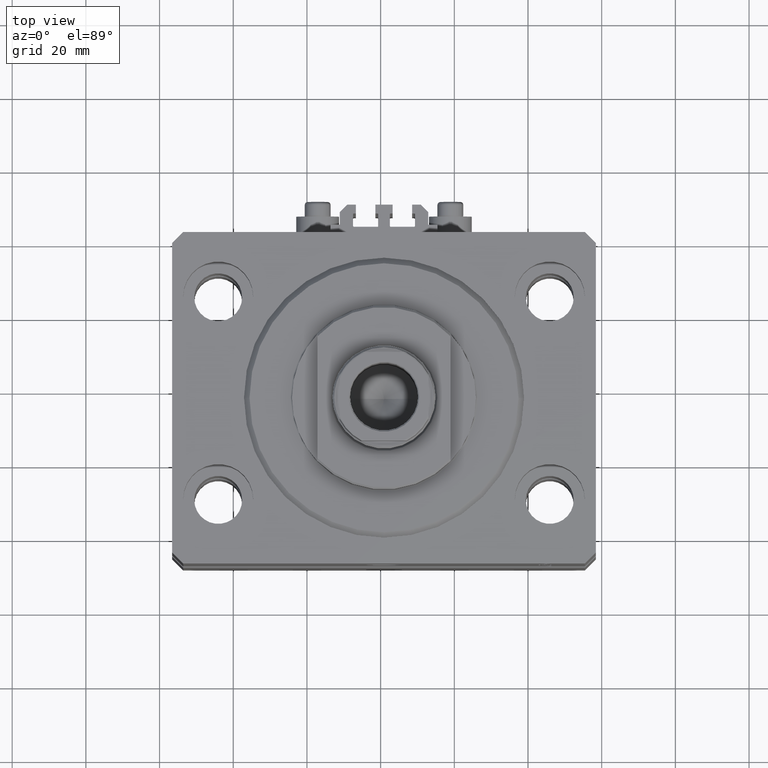
[diagram: clean part render]
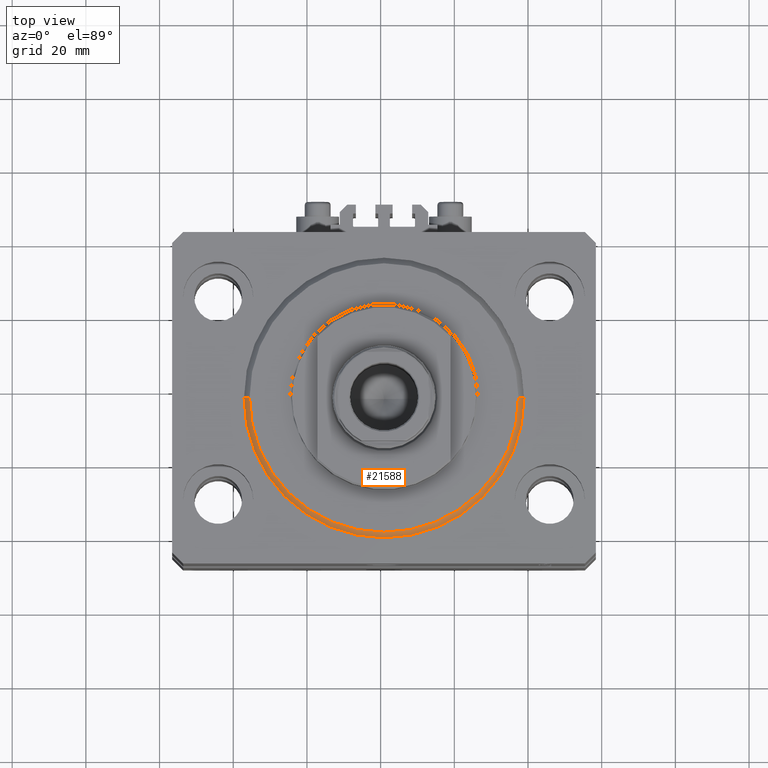
[diagram: same view with one face highlighted and labeled with its STEP entity id]
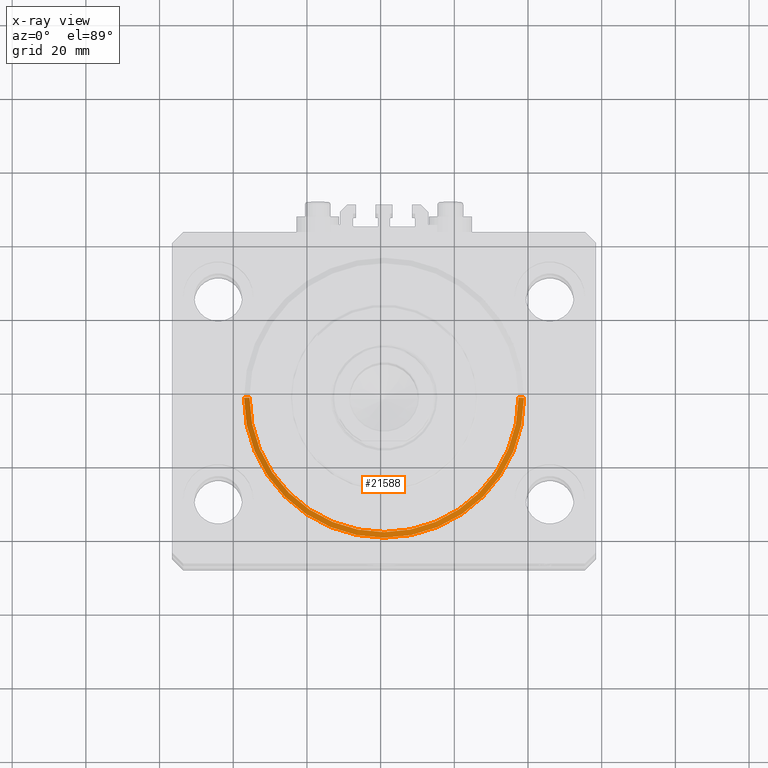
[diagram: x-ray of the same camera — body ghosted, the highlighted face saturated]
A machine part, top view. The second image highlights one B-rep face of the part: STEP entity #21588.
The next image is the same camera in x-ray: the body ghosted, the highlighted face saturated — about 0% of this face is hidden behind the body in this view.
In plain terms, the highlighted conical surface has half-angle 45 deg.
Its self-contained STEP definition (entity closure, byte-faithful):
#3385 = ORIENTED_EDGE ( 'NONE', *, *, #16274, .F. ) ;
#5655 = ORIENTED_EDGE ( 'NONE', *, *, #40999, .T. ) ;
#5938 = DIRECTION ( 'NONE',  ( -0.7071067811865491270, 8.659560562354953812E-17, 0.7071067811865459074 ) ) ;
#5985 = CARTESIAN_POINT ( 'NONE',  ( 38.00000000000000000, 4.653657836759941941E-15, 1.499999999999994449 ) ) ;
#8025 = AXIS2_PLACEMENT_3D ( 'NONE', #11445, #30858, #26889 ) ;
#11445 = CARTESIAN_POINT ( 'NONE',  ( 0.000000000000000000, 0.000000000000000000, 0.000000000000000000 ) ) ;
#13876 = CARTESIAN_POINT ( 'NONE',  ( -36.50000000000000000, 4.561809326823889791E-15, 0.000000000000000000 ) ) ;
#16274 = EDGE_CURVE ( 'NONE', #45695, #38200, #37918, .T. ) ;
#16666 = CARTESIAN_POINT ( 'NONE',  ( -38.00000000000000000, 4.653657836759941941E-15, 1.499999999999994449 ) ) ;
#16931 = VERTEX_POINT ( 'NONE', #13876 ) ;
#19073 = CARTESIAN_POINT ( 'NONE',  ( -38.00000000000000000, 0.000000000000000000, 1.499999999999994449 ) ) ;
#21588 = ADVANCED_FACE ( 'NONE', ( #48311 ), #46987, .T. ) ;
#22673 = EDGE_CURVE ( 'NONE', #31328, #16931, #23143, .T. ) ;
#22788 = EDGE_CURVE ( 'NONE', #16931, #45695, #24873, .T. ) ;
#23143 = CIRCLE ( 'NONE', #8025, 36.50000000000000000 ) ;
#24873 = LINE ( 'NONE', #16666, #41395 ) ;
#25327 = ORIENTED_EDGE ( 'NONE', *, *, #22788, .F. ) ;
#26889 = DIRECTION ( 'NONE',  ( 1.000000000000000000, 0.000000000000000000, 0.000000000000000000 ) ) ;
#27622 = AXIS2_PLACEMENT_3D ( 'NONE', #34154, #46558, #31160 ) ;
#29685 = DIRECTION ( 'NONE',  ( -0.000000000000000000, -0.000000000000000000, 1.000000000000000000 ) ) ;
#30375 = EDGE_LOOP ( 'NONE', ( #25327, #39984, #5655, #3385 ) ) ;
#30858 = DIRECTION ( 'NONE',  ( -0.000000000000000000, -0.000000000000000000, -1.000000000000000000 ) ) ;
#31160 = DIRECTION ( 'NONE',  ( 1.000000000000000000, 0.000000000000000000, 0.000000000000000000 ) ) ;
#31328 = VERTEX_POINT ( 'NONE', #39369 ) ;
#32019 = VECTOR ( 'NONE', #45007, 1000.000000000000114 ) ;
#32913 = DIRECTION ( 'NONE',  ( 1.000000000000000000, 0.000000000000000000, 0.000000000000000000 ) ) ;
#34154 = CARTESIAN_POINT ( 'NONE',  ( 0.000000000000000000, 0.000000000000000000, 1.499999999999994449 ) ) ;
#36812 = CARTESIAN_POINT ( 'NONE',  ( 38.00000000000000000, 0.000000000000000000, 1.499999999999994449 ) ) ;
#37805 = LINE ( 'NONE', #36812, #32019 ) ;
#37918 = CIRCLE ( 'NONE', #27622, 38.00000000000000000 ) ;
#38200 = VERTEX_POINT ( 'NONE', #5985 ) ;
#39043 = AXIS2_PLACEMENT_3D ( 'NONE', #48807, #29685, #32913 ) ;
#39369 = CARTESIAN_POINT ( 'NONE',  ( 36.50000000000000000, 0.000000000000000000, 0.000000000000000000 ) ) ;
#39984 = ORIENTED_EDGE ( 'NONE', *, *, #22673, .F. ) ;
#40999 = EDGE_CURVE ( 'NONE', #31328, #38200, #37805, .T. ) ;
#41395 = VECTOR ( 'NONE', #5938, 1000.000000000000114 ) ;
#45007 = DIRECTION ( 'NONE',  ( 0.7071067811865491270, 0.000000000000000000, 0.7071067811865459074 ) ) ;
#45695 = VERTEX_POINT ( 'NONE', #19073 ) ;
#46558 = DIRECTION ( 'NONE',  ( -0.000000000000000000, -0.000000000000000000, 1.000000000000000000 ) ) ;
#46987 = CONICAL_SURFACE ( 'NONE', #39043, 38.00000000000000000, 0.7853981633974506105 ) ;
#48311 = FACE_OUTER_BOUND ( 'NONE', #30375, .T. ) ;
#48807 = CARTESIAN_POINT ( 'NONE',  ( 0.000000000000000000, 0.000000000000000000, 1.499999999999994449 ) ) ;